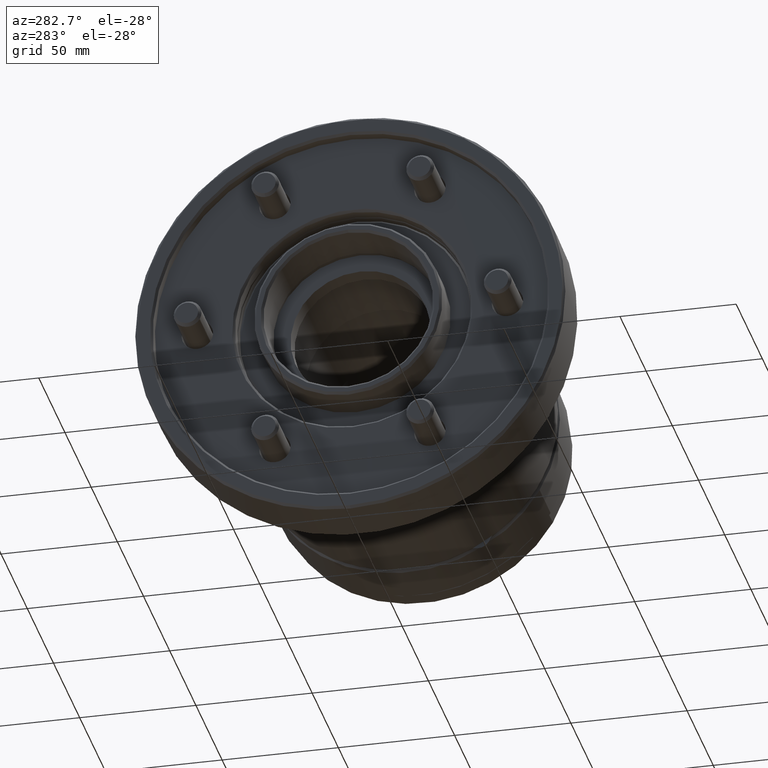
[diagram: clean part render]
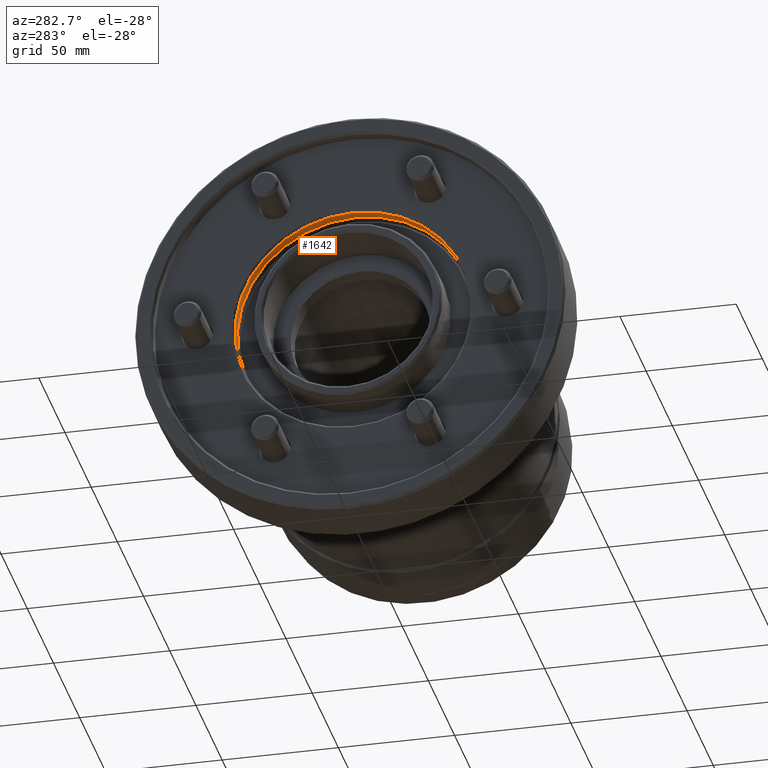
[diagram: same view with one face highlighted and labeled with its STEP entity id]
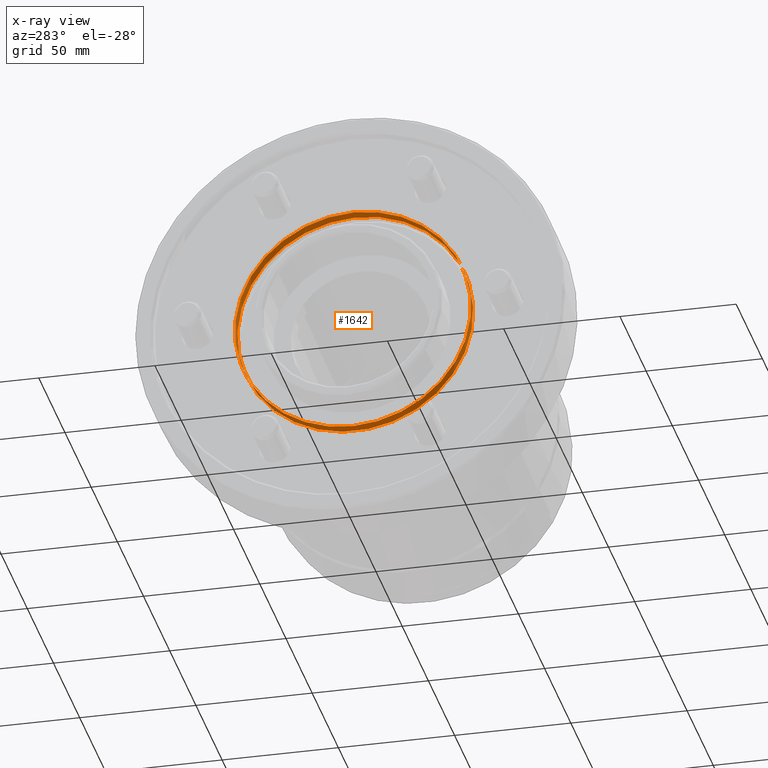
[diagram: x-ray of the same camera — body ghosted, the highlighted face saturated]
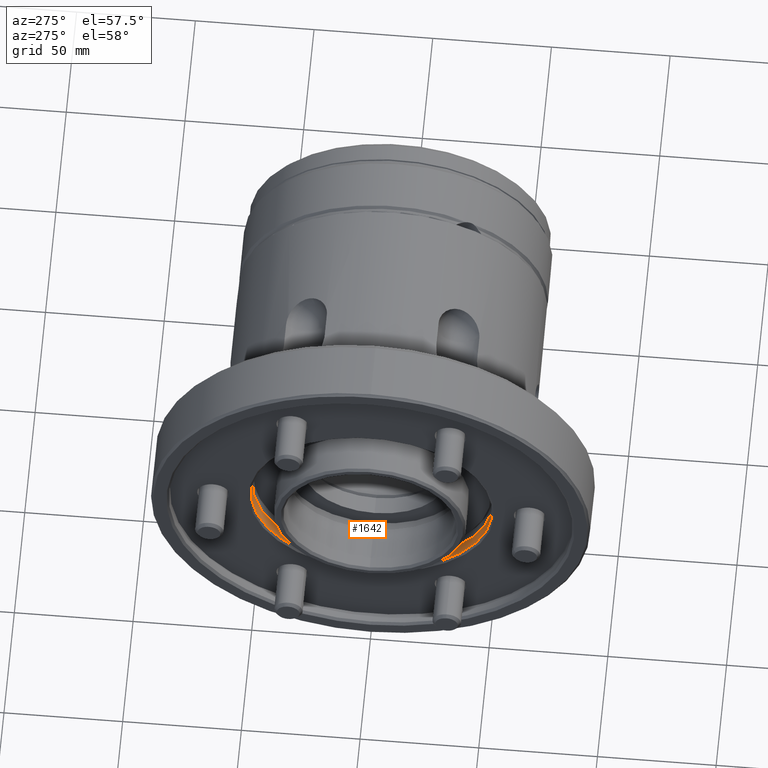
[diagram: same view with one face highlighted and labeled with its STEP entity id]
A machine part, auxiliary view. The second image highlights one B-rep face of the part: STEP entity #1642.
The next image is the same camera in x-ray: the body ghosted, the highlighted face saturated — about 0% of this face is hidden behind the body in this view.
A second angle (auxiliary view) of the same face is appended — the face is thin or edge-on in the first view.
In plain terms, the highlighted cylindrical surface (bore or boss wall) has radius 50.75 mm, axis along (-1, -0, -0).
Its self-contained STEP definition (entity closure, byte-faithful):
#1 = DIRECTION ( 'NONE',  ( 0.0000000000000000000, 0.0000000000000000000, -1.000000000000000000 ) ) ;
#124 = DIRECTION ( 'NONE',  ( 0.0000000000000000000, 0.0000000000000000000, 1.000000000000000000 ) ) ;
#134 = DIRECTION ( 'NONE',  ( -1.000000000000000000, -0.0000000000000000000, -0.0000000000000000000 ) ) ;
#147 = CARTESIAN_POINT ( 'NONE',  ( 0.0000000000000000000, 0.0000000000000000000, 0.0000000000000000000 ) ) ;
#157 = CYLINDRICAL_SURFACE ( 'NONE', #7758, 50.75000000000000000 ) ;
#161 = FACE_OUTER_BOUND ( 'NONE', #3538, .T. ) ;
#168 = FACE_OUTER_BOUND ( 'NONE', #7132, .T. ) ;
#325 = CARTESIAN_POINT ( 'NONE',  ( 10.56698729810777770, 0.0000000000000000000, 0.0000000000000000000 ) ) ;
#634 = CIRCLE ( 'NONE', #6204, 50.75000000000000000 ) ;
#1642 = ADVANCED_FACE ( 'NONE', ( #168, #161 ), #157, .F. ) ;
#1989 = VERTEX_POINT ( 'NONE', #4373 ) ;
#2176 = CIRCLE ( 'NONE', #6585, 50.75000000000000000 ) ;
#2490 = EDGE_CURVE ( 'NONE', #1989, #1989, #2176, .T. ) ;
#2654 = DIRECTION ( 'NONE',  ( -1.000000000000000000, 0.0000000000000000000, 0.0000000000000000000 ) ) ;
#2724 = DIRECTION ( 'NONE',  ( -1.000000000000000000, -0.0000000000000000000, -0.0000000000000000000 ) ) ;
#2769 = CARTESIAN_POINT ( 'NONE',  ( 5.999999999999964473, 0.0000000000000000000, 0.0000000000000000000 ) ) ;
#2977 = VERTEX_POINT ( 'NONE', #5407 ) ;
#3538 = EDGE_LOOP ( 'NONE', ( #4517 ) ) ;
#4373 = CARTESIAN_POINT ( 'NONE',  ( 5.999999999999964473, 0.0000000000000000000, -50.75000000000000000 ) ) ;
#4495 = ORIENTED_EDGE ( 'NONE', *, *, #2490, .T. ) ;
#4517 = ORIENTED_EDGE ( 'NONE', *, *, #7406, .F. ) ;
#5140 = DIRECTION ( 'NONE',  ( 0.0000000000000000000, 0.0000000000000000000, 1.000000000000000000 ) ) ;
#5407 = CARTESIAN_POINT ( 'NONE',  ( 10.56698729810777770, 0.0000000000000000000, 50.75000000000000000 ) ) ;
#6204 = AXIS2_PLACEMENT_3D ( 'NONE', #325, #2724, #5140 ) ;
#6585 = AXIS2_PLACEMENT_3D ( 'NONE', #2769, #2654, #1 ) ;
#7132 = EDGE_LOOP ( 'NONE', ( #4495 ) ) ;
#7406 = EDGE_CURVE ( 'NONE', #2977, #2977, #634, .T. ) ;
#7758 = AXIS2_PLACEMENT_3D ( 'NONE', #147, #134, #124 ) ;